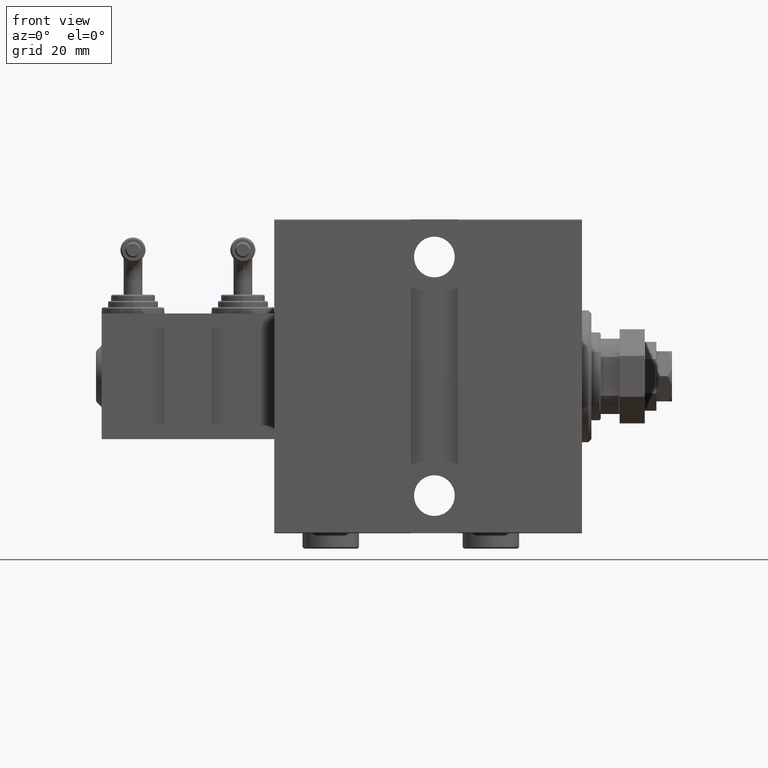
[diagram: clean part render]
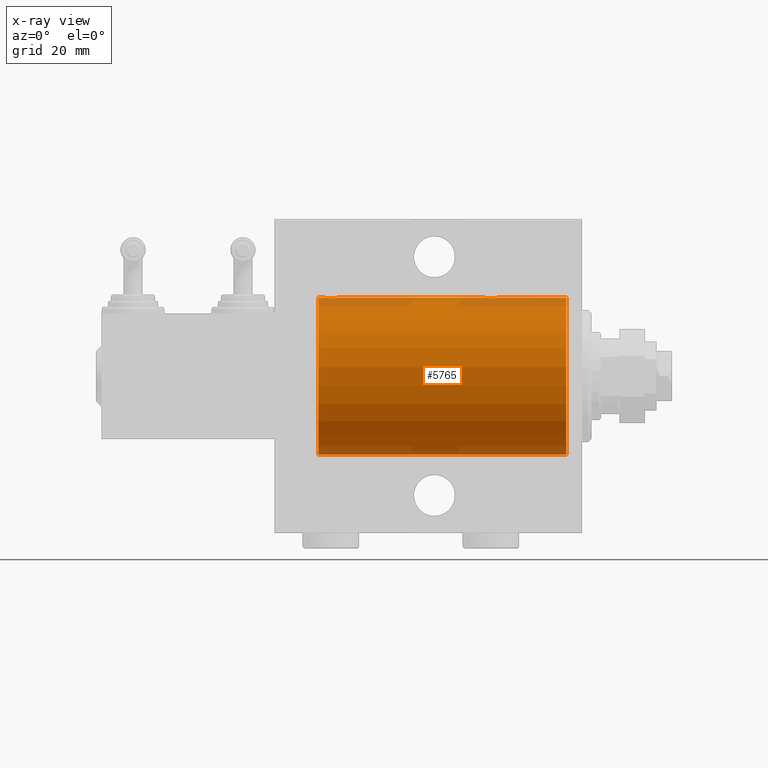
[diagram: x-ray — body ghosted, one internal face saturated and labeled with its STEP entity id]
A machine part, front view, then the same camera in x-ray: the body is ghosted and one INTERNAL B-rep face — a face not visible from any outside direction — is saturated and labeled: STEP entity #5765.
In plain terms, the highlighted cylindrical surface (partial cylindrical patch) has radius 25 mm, axis along (1, 0, -0).
Its self-contained STEP definition (entity closure, byte-faithful):
#232 = ORIENTED_EDGE ( 'NONE', *, *, #34404, .T. ) ;
#592 = CARTESIAN_POINT ( 'NONE',  ( 82.48376868269158990, 0.3278008924763897713, 24.99836206720143394 ) ) ;
#848 = CARTESIAN_POINT ( 'NONE',  ( 82.42019035479160038, 0.6474866336855787941, 24.99212517028518832 ) ) ;
#1065 = CARTESIAN_POINT ( 'NONE',  ( 84.00000000000000000, 0.000000000000000000, 25.00000000000000000 ) ) ;
#1139 = EDGE_CURVE ( 'NONE', #25646, #18390, #43585, .T. ) ;
#1317 = LINE ( 'NONE', #1065, #17576 ) ;
#1671 = LINE ( 'NONE', #30186, #46600 ) ;
#2000 = CARTESIAN_POINT ( 'NONE',  ( 31.42019035479160038, 0.6474866336855810145, 24.99212517028518832 ) ) ;
#2248 = CARTESIAN_POINT ( 'NONE',  ( 31.37206391457592858, 0.8063280894284537981, 24.98745245851526064 ) ) ;
#2506 = CARTESIAN_POINT ( 'NONE',  ( 26.62762890801418791, 0.8054273576766337595, 24.98748174524256171 ) ) ;
#2883 = CYLINDRICAL_SURFACE ( 'NONE', #26408, 25.00000000000000000 ) ;
#3977 = CARTESIAN_POINT ( 'NONE',  ( 77.62762890801420212, 0.8054273576766330933, 24.98748174524255106 ) ) ;
#4229 = CARTESIAN_POINT ( 'NONE',  ( 81.98824666821940355, 1.524323445682836509, 24.95385641887458661 ) ) ;
#4249 = ORIENTED_EDGE ( 'NONE', *, *, #23982, .F. ) ;
#4736 = CARTESIAN_POINT ( 'NONE',  ( 82.16970456409872270, 1.252624798282892860, 24.96896960740658500 ) ) ;
#4919 = VERTEX_POINT ( 'NONE', #7135 ) ;
#5151 = DIRECTION ( 'NONE',  ( -1.000000000000000000, -0.000000000000000000, -0.000000000000000000 ) ) ;
#5627 = CARTESIAN_POINT ( 'NONE',  ( 26.51635884985689984, 0.3289998300458025771, 24.99834914448731737 ) ) ;
#5667 = CARTESIAN_POINT ( 'NONE',  ( 84.00000000000000000, 0.000000000000000000, 25.00000000000000000 ) ) ;
#5695 = CARTESIAN_POINT ( 'NONE',  ( 84.00000000000000000, 0.000000000000000000, 25.00000000000000000 ) ) ;
#5765 = ADVANCED_FACE ( 'NONE', ( #33759 ), #2883, .F. ) ;
#5870 = VERTEX_POINT ( 'NONE', #29464 ) ;
#5885 = CARTESIAN_POINT ( 'NONE',  ( 27.11576698070013336, 1.651337078997080710, 24.94567646296264840 ) ) ;
#6273 = DIRECTION ( 'NONE',  ( -1.000000000000000000, -0.000000000000000000, -0.000000000000000000 ) ) ;
#6539 = VERTEX_POINT ( 'NONE', #19269 ) ;
#6651 = CARTESIAN_POINT ( 'NONE',  ( 31.50000000000000000, -3.363311788663921560E-15, 25.00000000000000000 ) ) ;
#7135 = CARTESIAN_POINT ( 'NONE',  ( 82.50000000000001421, 2.791216707898424283E-15, 25.00000000000000000 ) ) ;
#7913 = CARTESIAN_POINT ( 'NONE',  ( 5.000000000000004441, 0.000000000000000000, 25.00000000000000000 ) ) ;
#8344 = DIRECTION ( 'NONE',  ( -1.000000000000000000, 0.000000000000000000, 0.000000000000000000 ) ) ;
#8635 = CARTESIAN_POINT ( 'NONE',  ( 78.01241165387911281, 1.525124164792365455, 24.95380474534677262 ) ) ;
#9773 = CARTESIAN_POINT ( 'NONE',  ( 30.88269712975891323, 1.652881481536637054, 24.94556728625771669 ) ) ;
#10032 = CARTESIAN_POINT ( 'NONE',  ( 30.65214997850824830, 1.883339088673197992, 24.92922739080161421 ) ) ;
#10543 = CARTESIAN_POINT ( 'NONE',  ( 27.89254763180204222, 2.247309494740949543, 24.89886665287248491 ) ) ;
#12022 = CARTESIAN_POINT ( 'NONE',  ( 77.51635884985689984, 0.3289998300458005231, 24.99834914448731737 ) ) ;
#12273 = CARTESIAN_POINT ( 'NONE',  ( 81.88269712975893810, 1.652881481536634167, 24.94556728625772024 ) ) ;
#12782 = CARTESIAN_POINT ( 'NONE',  ( 81.52633503512342372, 1.986787236855545924, 24.92109717386377810 ) ) ;
#13445 = ORIENTED_EDGE ( 'NONE', *, *, #1139, .T. ) ;
#14182 = CARTESIAN_POINT ( 'NONE',  ( 31.24651678820870515, 1.109060198064595992, 24.97584694923138215 ) ) ;
#14439 = CARTESIAN_POINT ( 'NONE',  ( 29.16407969376738052, 2.499940606140134136, 24.87469189697262095 ) ) ;
#14690 = CARTESIAN_POINT ( 'NONE',  ( 28.35125657267360566, 2.419890192637116133, 24.88262770889313202 ) ) ;
#15913 = CARTESIAN_POINT ( 'NONE',  ( 80.80683588887137603, 2.371819214216743799, 24.88731391344729360 ) ) ;
#16152 = EDGE_CURVE ( 'NONE', #4919, #43061, #50044, .T. ) ;
#16163 = CARTESIAN_POINT ( 'NONE',  ( 82.50000000000001421, 0.1652919547268416056, 25.00000000000000355 ) ) ;
#16416 = CARTESIAN_POINT ( 'NONE',  ( 81.10765995523904337, 2.247131495942863211, 24.89888190765473652 ) ) ;
#16670 = CARTESIAN_POINT ( 'NONE',  ( 80.32637449227345883, 2.484060984458436039, 24.87630362147113772 ) ) ;
#16886 = DIRECTION ( 'NONE',  ( -1.000000000000000000, -0.000000000000000000, -0.000000000000000000 ) ) ;
#17557 = CARTESIAN_POINT ( 'NONE',  ( 30.52633503512342017, 1.986787236855546368, 24.92109717386378520 ) ) ;
#17576 = VECTOR ( 'NONE', #16886, 1000.000000000000000 ) ;
#17817 = CARTESIAN_POINT ( 'NONE',  ( 27.34924793645206975, 1.884745564839652721, 24.92912799315484662 ) ) ;
#18073 = CARTESIAN_POINT ( 'NONE',  ( 29.80683588887133340, 2.371819214216748239, 24.88731391344729360 ) ) ;
#18390 = VERTEX_POINT ( 'NONE', #48735 ) ;
#18419 = VERTEX_POINT ( 'NONE', #5695 ) ;
#18584 = CARTESIAN_POINT ( 'NONE',  ( 26.50000000000000355, -1.940558383798427991E-23, 25.00000000000000000 ) ) ;
#18700 = DIRECTION ( 'NONE',  ( 0.000000000000000000, 0.000000000000000000, 1.000000000000000000 ) ) ;
#18761 = EDGE_CURVE ( 'NONE', #6539, #5870, #49840, .T. ) ;
#19044 = EDGE_CURVE ( 'NONE', #18419, #4919, #1671, .T. ) ;
#19269 = CARTESIAN_POINT ( 'NONE',  ( 31.50000000000000000, -3.363311788663921560E-15, 25.00000000000000000 ) ) ;
#20228 = VECTOR ( 'NONE', #28986, 1000.000000000000000 ) ;
#20303 = CARTESIAN_POINT ( 'NONE',  ( 79.19536086700188093, 2.372637051600620328, 24.88723676875458324 ) ) ;
#20549 = CARTESIAN_POINT ( 'NONE',  ( 77.83138181747520434, 1.254434665533501914, 24.96887599906796495 ) ) ;
#20807 = CARTESIAN_POINT ( 'NONE',  ( 77.50000000000000000, 0.1632133729155517687, 24.99999999999999645 ) ) ;
#21222 = AXIS2_PLACEMENT_3D ( 'NONE', #24159, #8344, #35840 ) ;
#22212 = CARTESIAN_POINT ( 'NONE',  ( 31.16970456409868362, 1.252624798282893304, 24.96896960740657789 ) ) ;
#22467 = CARTESIAN_POINT ( 'NONE',  ( 28.67198227724997395, 2.483775543901335592, 24.87633190989611265 ) ) ;
#23825 = EDGE_LOOP ( 'NONE', ( #4249, #44142, #44202, #48370, #232, #38518, #37899, #13445 ) ) ;
#23982 = EDGE_CURVE ( 'NONE', #24036, #18390, #24851, .T. ) ;
#24036 = VERTEX_POINT ( 'NONE', #45857 ) ;
#24159 = CARTESIAN_POINT ( 'NONE',  ( 5.000000000000004441, 0.000000000000000000, 0.000000000000000000 ) ) ;
#24443 = CARTESIAN_POINT ( 'NONE',  ( 82.37206391457593213, 0.8063280894284519107, 24.98745245851526420 ) ) ;
#24695 = CARTESIAN_POINT ( 'NONE',  ( 78.47549655812819935, 1.988066470813636410, 24.92099187803979987 ) ) ;
#24851 = LINE ( 'NONE', #40676, #27162 ) ;
#25585 = CARTESIAN_POINT ( 'NONE',  ( 28.83773523386617654, 2.500059064463603153, 24.87467999146394959 ) ) ;
#25646 = VERTEX_POINT ( 'NONE', #7913 ) ;
#25841 = CARTESIAN_POINT ( 'NONE',  ( 29.64916515999327018, 2.419847904056432686, 24.88263203448061134 ) ) ;
#26102 = CARTESIAN_POINT ( 'NONE',  ( 27.01241165387908083, 1.525124164792365677, 24.95380474534677262 ) ) ;
#26355 = CARTESIAN_POINT ( 'NONE',  ( 26.58033563915884656, 0.6495680347195832427, 24.99207398768919575 ) ) ;
#26408 = AXIS2_PLACEMENT_3D ( 'NONE', #34018, #6273, #18700 ) ;
#27162 = VECTOR ( 'NONE', #5151, 1000.000000000000000 ) ;
#28215 = CIRCLE ( 'NONE', #44811, 25.00000000000000000 ) ;
#28326 = CARTESIAN_POINT ( 'NONE',  ( 80.16407969376739118, 2.499940606140130583, 24.87469189697261740 ) ) ;
#28587 = CARTESIAN_POINT ( 'NONE',  ( 78.89254763180203156, 2.247309494740944213, 24.89886665287247780 ) ) ;
#28986 = DIRECTION ( 'NONE',  ( -1.000000000000000000, -0.000000000000000000, -0.000000000000000000 ) ) ;
#29249 = DIRECTION ( 'NONE',  ( -1.000000000000000000, 0.000000000000000000, 0.000000000000000000 ) ) ;
#29464 = CARTESIAN_POINT ( 'NONE',  ( 26.50000000000000355, -1.940558383798427991E-23, 25.00000000000000000 ) ) ;
#29725 = CARTESIAN_POINT ( 'NONE',  ( 31.49999999999999289, 0.1652919547268403844, 25.00000000000000000 ) ) ;
#29984 = CARTESIAN_POINT ( 'NONE',  ( 28.19536086700186317, 2.372637051600623881, 24.88723676875458324 ) ) ;
#30186 = CARTESIAN_POINT ( 'NONE',  ( 84.00000000000000000, 0.000000000000000000, 25.00000000000000000 ) ) ;
#31461 = CARTESIAN_POINT ( 'NONE',  ( 78.11576698070011560, 1.651337078997080043, 24.94567646296264485 ) ) ;
#31630 = EDGE_CURVE ( 'NONE', #18419, #24036, #28215, .T. ) ;
#31974 = CARTESIAN_POINT ( 'NONE',  ( 81.25304113529938377, 2.169541443998010521, 24.90585268157805032 ) ) ;
#32493 = CARTESIAN_POINT ( 'NONE',  ( 77.75307623591049833, 1.108237982093032370, 24.97588368351298627 ) ) ;
#32651 = CARTESIAN_POINT ( 'NONE',  ( 84.00000000000000000, 0.000000000000000000, 0.000000000000000000 ) ) ;
#33759 = FACE_OUTER_BOUND ( 'NONE', #23825, .T. ) ;
#34018 = CARTESIAN_POINT ( 'NONE',  ( 84.00000000000000000, 0.000000000000000000, 0.000000000000000000 ) ) ;
#34404 = EDGE_CURVE ( 'NONE', #43061, #6539, #1317, .T. ) ;
#35610 = CARTESIAN_POINT ( 'NONE',  ( 81.65214997850823408, 1.883339088673195327, 24.92922739080160355 ) ) ;
#35840 = DIRECTION ( 'NONE',  ( 0.000000000000000000, 0.000000000000000000, 1.000000000000000000 ) ) ;
#35870 = CARTESIAN_POINT ( 'NONE',  ( 80.64916515999327373, 2.419847904056426025, 24.88263203448060779 ) ) ;
#37258 = CARTESIAN_POINT ( 'NONE',  ( 30.10765995523902916, 2.247131495942866319, 24.89888190765473297 ) ) ;
#37421 = CARTESIAN_POINT ( 'NONE',  ( 77.50000000000001421, -1.940163953345817485E-23, 25.00000000000000000 ) ) ;
#37899 = ORIENTED_EDGE ( 'NONE', *, *, #42834, .T. ) ;
#38034 = CARTESIAN_POINT ( 'NONE',  ( 26.75307623591046635, 1.108237982093033258, 24.97588368351298627 ) ) ;
#38291 = CARTESIAN_POINT ( 'NONE',  ( 26.50000000000000355, 0.1632133729155534341, 25.00000000000000355 ) ) ;
#38518 = ORIENTED_EDGE ( 'NONE', *, *, #18761, .T. ) ;
#39496 = CARTESIAN_POINT ( 'NONE',  ( 78.74628466518808523, 2.169035936979781365, 24.90589343070811168 ) ) ;
#40010 = CARTESIAN_POINT ( 'NONE',  ( 79.67198227724999526, 2.483775543901331151, 24.87633190989611265 ) ) ;
#40676 = CARTESIAN_POINT ( 'NONE',  ( 84.00000000000000000, 3.061616997868382254E-15, -25.00000000000000000 ) ) ;
#41402 = CARTESIAN_POINT ( 'NONE',  ( 27.47549655812821001, 1.988066470813638631, 24.92099187803980342 ) ) ;
#41924 = CARTESIAN_POINT ( 'NONE',  ( 26.83138181747519369, 1.254434665533501247, 24.96887599906796140 ) ) ;
#42834 = EDGE_CURVE ( 'NONE', #5870, #25646, #44815, .T. ) ;
#43061 = VERTEX_POINT ( 'NONE', #37421 ) ;
#43585 = CIRCLE ( 'NONE', #21222, 25.00000000000000000 ) ;
#43649 = CARTESIAN_POINT ( 'NONE',  ( 79.83773523386616944, 2.500059064463600489, 24.87467999146394604 ) ) ;
#43906 = CARTESIAN_POINT ( 'NONE',  ( 79.35125657267359145, 2.419890192637109028, 24.88262770889313558 ) ) ;
#44142 = ORIENTED_EDGE ( 'NONE', *, *, #31630, .F. ) ;
#44162 = CARTESIAN_POINT ( 'NONE',  ( 78.34924793645207330, 1.884745564839651832, 24.92912799315484307 ) ) ;
#44202 = ORIENTED_EDGE ( 'NONE', *, *, #19044, .T. ) ;
#44412 = CARTESIAN_POINT ( 'NONE',  ( 82.50000000000001421, 2.791216707898424283E-15, 25.00000000000000000 ) ) ;
#44811 = AXIS2_PLACEMENT_3D ( 'NONE', #32651, #29249, #48458 ) ;
#44815 = LINE ( 'NONE', #5667, #20228 ) ;
#45290 = CARTESIAN_POINT ( 'NONE',  ( 30.98824666821940355, 1.524323445682836953, 24.95385641887459016 ) ) ;
#45487 = DIRECTION ( 'NONE',  ( -1.000000000000000000, -0.000000000000000000, -0.000000000000000000 ) ) ;
#45812 = CARTESIAN_POINT ( 'NONE',  ( 27.74628466518808168, 2.169035936979783585, 24.90589343070811168 ) ) ;
#45857 = CARTESIAN_POINT ( 'NONE',  ( 84.00000000000000000, 3.061616997868382254E-15, -25.00000000000000000 ) ) ;
#46062 = CARTESIAN_POINT ( 'NONE',  ( 30.25304113529935890, 2.169541443998010966, 24.90585268157805032 ) ) ;
#46600 = VECTOR ( 'NONE', #45487, 1000.000000000000000 ) ;
#47272 = CARTESIAN_POINT ( 'NONE',  ( 77.50000000000001421, -1.940163953345817485E-23, 25.00000000000000000 ) ) ;
#47531 = CARTESIAN_POINT ( 'NONE',  ( 82.24651678820872291, 1.109060198064593328, 24.97584694923138215 ) ) ;
#48299 = CARTESIAN_POINT ( 'NONE',  ( 77.58033563915887498, 0.6495680347195814663, 24.99207398768919219 ) ) ;
#48370 = ORIENTED_EDGE ( 'NONE', *, *, #16152, .T. ) ;
#48458 = DIRECTION ( 'NONE',  ( 0.000000000000000000, 0.000000000000000000, 1.000000000000000000 ) ) ;
#48735 = CARTESIAN_POINT ( 'NONE',  ( 5.000000000000004441, 3.061616997868382254E-15, -25.00000000000000000 ) ) ;
#49191 = CARTESIAN_POINT ( 'NONE',  ( 29.32637449227344817, 2.484060984458440924, 24.87630362147114127 ) ) ;
#49840 = B_SPLINE_CURVE_WITH_KNOTS ( 'NONE', 3,
 ( #6651, #29725, #49955, #2000, #2248, #14182, #22212, #45290, #9773, #10032, #17557, #46062, #37258, #18073, #25841, #49191, #14439, #25585, #22467, #14690, #29984, #10543, #45812, #41402, #17817, #5885, #26102, #41924, #38034, #2506, #26355, #5627, #38291, #18584 ),
 .UNSPECIFIED., .F., .F.,
 ( 4, 2, 2, 2, 2, 2, 2, 2, 2, 2, 2, 2, 2, 2, 2, 2, 4 ),
 ( 5.557925451109527434E-18, 0.0004888140276038975334, 0.0009776280552077896459, 0.001466442082811681216, 0.001955256110415572787, 0.002444070138019463923, 0.002932884165623355927, 0.003421698193227247064, 0.003910512220831138634, 0.004399326248435030638, 0.004888140276038921775, 0.005376954303642814646, 0.005865768331246706650, 0.006354582358850598654, 0.006843396386454489791, 0.007332210414058382662, 0.007821024441662273799 ),
 .UNSPECIFIED. ) ;
#49955 = CARTESIAN_POINT ( 'NONE',  ( 31.48376868269157214, 0.3278008924763924359, 24.99836206720143394 ) ) ;
#50044 = B_SPLINE_CURVE_WITH_KNOTS ( 'NONE', 3,
 ( #44412, #16163, #592, #848, #24443, #47531, #4736, #4229, #12273, #35610, #12782, #31974, #16416, #15913, #35870, #16670, #28326, #43649, #40010, #43906, #20303, #28587, #39496, #24695, #44162, #31461, #8635, #20549, #32493, #3977, #48299, #12022, #20807, #47272 ),
 .UNSPECIFIED., .F., .F.,
 ( 4, 2, 2, 2, 2, 2, 2, 2, 2, 2, 2, 2, 2, 2, 2, 2, 4 ),
 ( 2.712282590340838778E-18, 0.0004888140276038966661, 0.0009776280552077907301, 0.001466442082811684035, 0.001955256110415577123, 0.002444070138019470862, 0.002932884165623363733, 0.003421698193227256605, 0.003910512220831149910, 0.004399326248435042781, 0.004888140276038936520, 0.005376954303642829391, 0.005865768331246722263, 0.006354582358850615134, 0.006843396386454508006, 0.007332210414058401744, 0.007821024441662294616 ),
 .UNSPECIFIED. ) ;